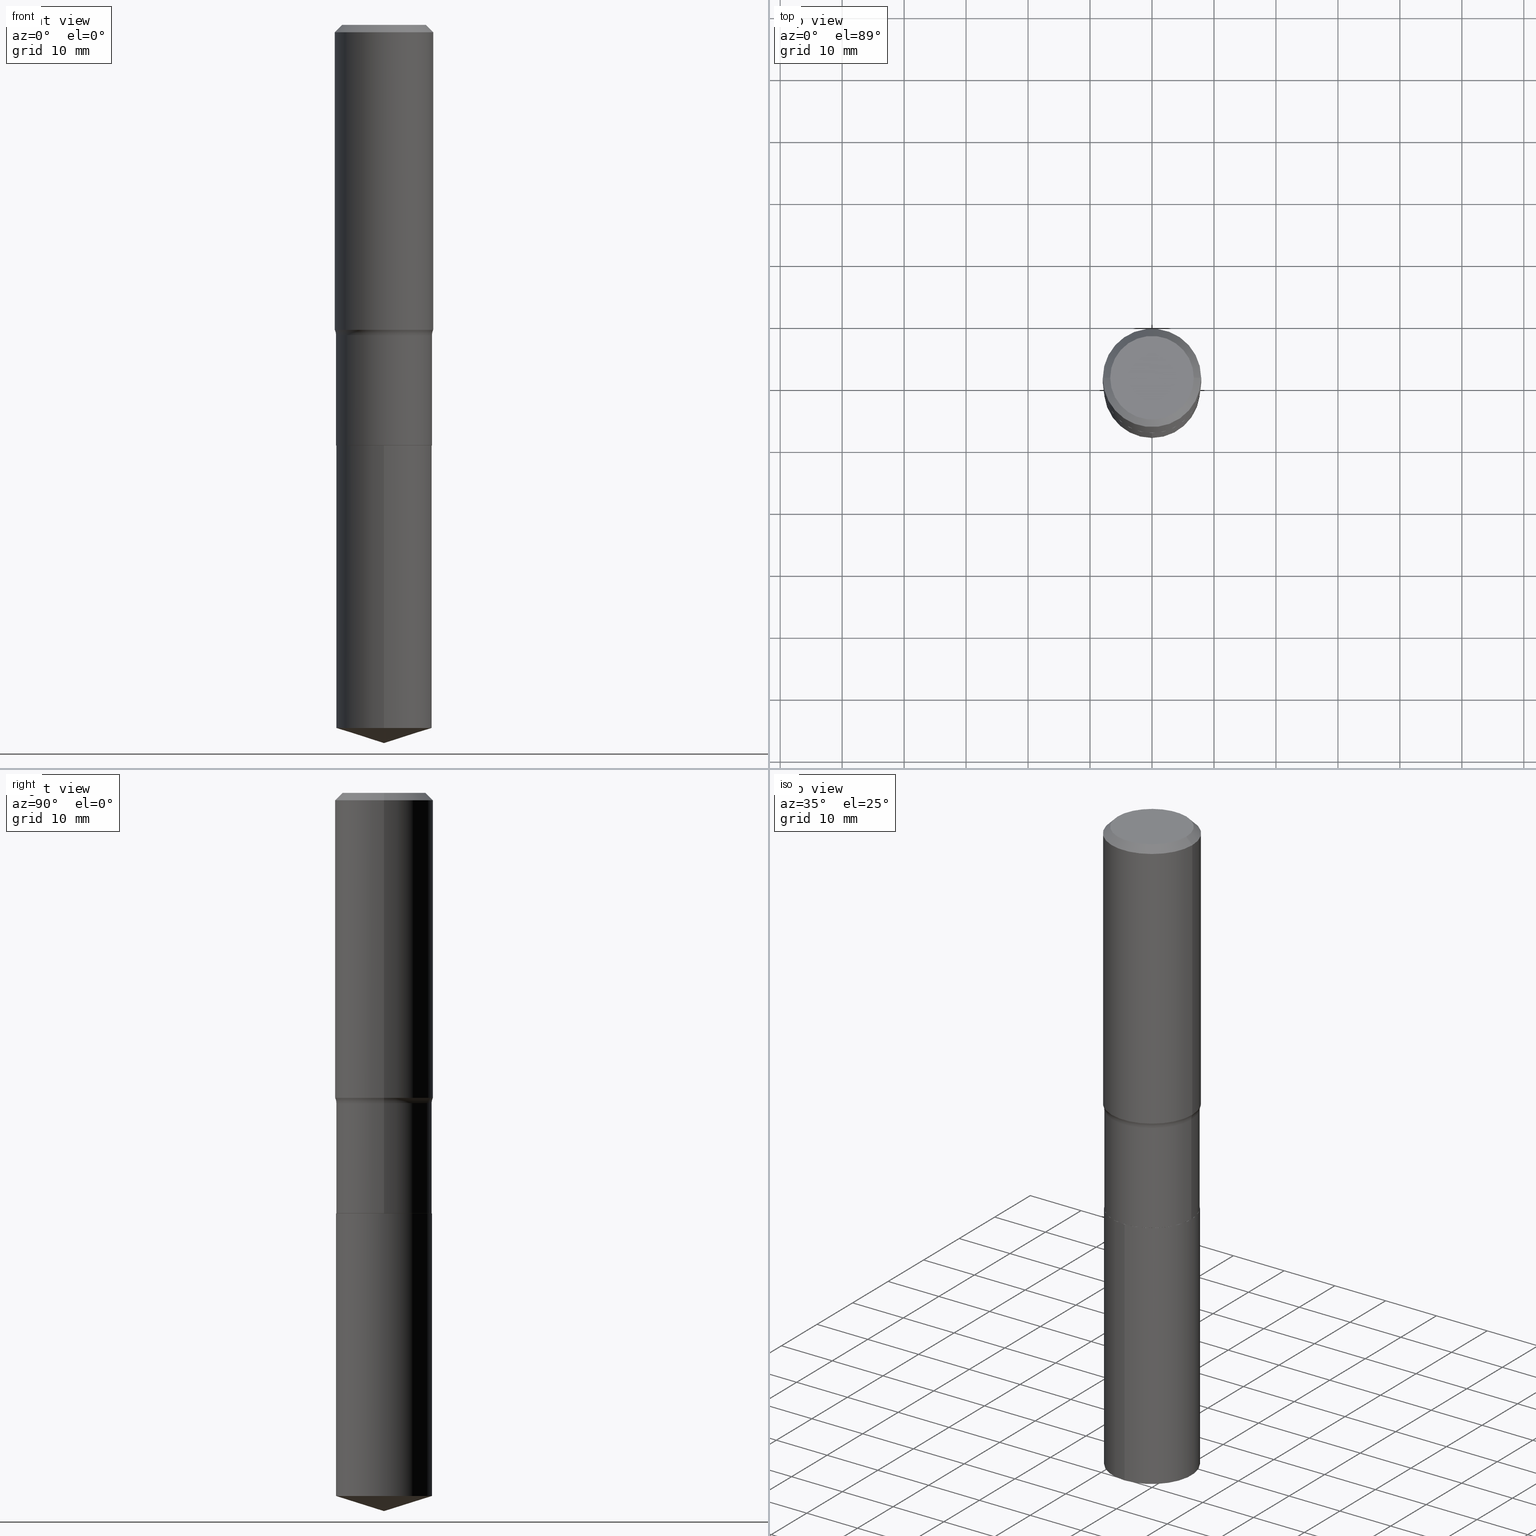
[diagram: canonical four-view strip — front | top / right | iso, engineering-drawing reading convention]
A machine part, canonical four-view strip (front | top / right | iso — engineering-drawing reading convention). The complete STEP part file that produces these views, byte-faithful:
ISO-10303-21;
HEADER;
FILE_DESCRIPTION (( 'STEP AP203' ),
    '1' );
FILE_NAME ('51785.STEP',
    '2024-04-19T13:26:02',
    ( '' ),
    ( '' ),
    'SwSTEP 2.0',
    'SolidWorks 2023',
    '' );
FILE_SCHEMA (( 'CONFIG_CONTROL_DESIGN' ));
ENDSEC;

DATA;
#1 = CARTESIAN_POINT ( 'NONE',  ( 0.3046999999999999709, -2.127708727891005464E-15, 1.485771063585021539E-29 ) ) ;
#2 = LINE ( 'NONE', #383, #112 ) ;
#3 = CARTESIAN_POINT ( 'NONE',  ( 1.146313502899288910E-30, -1.636631877582733305E-16, -0.04687500000000024980 ) ) ;
#4 = DIRECTION ( 'NONE',  ( 2.438088387897960049E-29, -3.491481338843145188E-15, -1.000000000000000000 ) ) ;
#5 =( GEOMETRIC_REPRESENTATION_CONTEXT ( 3 ) GLOBAL_UNCERTAINTY_ASSIGNED_CONTEXT ( ( #291 ) ) GLOBAL_UNIT_ASSIGNED_CONTEXT ( ( #435, #401, #329 ) ) REPRESENTATION_CONTEXT ( 'NONE', 'WORKASPACE' ) );
#6 = DIRECTION ( 'NONE',  ( 0.7071067811865454633, -7.319954787623248157E-15, -0.7071067811865495711 ) ) ;
#7 = DIRECTION ( 'NONE',  ( -2.445845639949451117E-29, 3.490941691444601507E-15, 1.000000000000000000 ) ) ;
#8 = CC_DESIGN_PERSON_AND_ORGANIZATION_ASSIGNMENT ( #474, #356, ( #333 ) ) ;
#9 = DIRECTION ( 'NONE',  ( -6.659769872151632089E-15, -0.9537169507482267106, 0.3007057995042736187 ) ) ;
#10 = CARTESIAN_POINT ( 'NONE',  ( -8.513497156094624843E-28, 1.215097859183723388E-13, 34.80757874015748143 ) ) ;
#11 = ORIENTED_EDGE ( 'NONE', *, *, #416, .T. ) ;
#12 = DATE_AND_TIME ( #470, #319 ) ;
#13 = CARTESIAN_POINT ( 'NONE',  ( 6.534048103246064579E-29, -9.328888989254999169E-15, -2.671899999999999498 ) ) ;
#14 = CIRCLE ( 'NONE', #65, 0.3047000000000000264 ) ;
#15 = EDGE_CURVE ( 'NONE', #136, #174, #484, .T. ) ;
#16 = CARTESIAN_POINT ( 'NONE',  ( 0.3042000000000000259, -1.145310623580716044E-14, -2.671899999999999498 ) ) ;
#17 = DATE_AND_TIME ( #406, #467 ) ;
#18 = APPROVAL_ROLE ( '' ) ;
#19 = ADVANCED_FACE ( 'NONE', ( #217 ), #368, .T. ) ;
#20 = EDGE_LOOP ( 'NONE', ( #62, #205 ) ) ;
#21 = PERSON_AND_ORGANIZATION_ROLE ( 'design_owner' ) ;
#22 = ORIENTED_EDGE ( 'NONE', *, *, #38, .F. ) ;
#23 = DIRECTION ( 'NONE',  ( 1.000000000000000000, -6.982962677686268288E-15, 4.875573276536765329E-29 ) ) ;
#24 = CONICAL_SURFACE ( 'NONE', #491, 0.3042000000000000259, 0.7853981633972775267 ) ;
#25 = DIRECTION ( 'NONE',  ( -2.445468806185136597E-29, 3.491481338843145583E-15, 1.000000000000000000 ) ) ;
#26 = ORIENTED_EDGE ( 'NONE', *, *, #254, .T. ) ;
#27 = EDGE_CURVE ( 'NONE', #488, #91, #196, .T. ) ;
#28 = ORIENTED_EDGE ( 'NONE', *, *, #226, .F. ) ;
#29 = ORIENTED_EDGE ( 'NONE', *, *, #275, .T. ) ;
#30 = CLOSED_SHELL ( 'NONE', ( #81, #72, #19, #441, #34, #127, #340, #190, #143, #109, #419, #49 ) ) ;
#31 = CIRCLE ( 'NONE', #386, 0.3047000000000000264 ) ;
#32 = ORIENTED_EDGE ( 'NONE', *, *, #173, .F. ) ;
#33 = DIRECTION ( 'NONE',  ( -2.445468806185136597E-29, 3.491481338843145583E-15, 1.000000000000000000 ) ) ;
#34 = ADVANCED_FACE ( 'NONE', ( #417 ), #238, .T. ) ;
#35 = ORIENTED_EDGE ( 'NONE', *, *, #412, .T. ) ;
#36 = CIRCLE ( 'NONE', #374, 0.07799999999999995826 ) ;
#37 = CONICAL_SURFACE ( 'NONE', #96, 0.3125000000000000000, 0.7853981633974453924 ) ;
#38 = EDGE_CURVE ( 'NONE', #220, #370, #389, .T. ) ;
#39 = EDGE_CURVE ( 'NONE', #220, #162, #208, .T. ) ;
#40 = LINE ( 'NONE', #1, #271 ) ;
#41 = CARTESIAN_POINT ( 'NONE',  ( 1.146313502899288910E-30, -1.636631877582733305E-16, -0.04687500000000024980 ) ) ;
#42 = DIRECTION ( 'NONE',  ( -2.445468806185136597E-29, 3.491481338843145583E-15, 1.000000000000000000 ) ) ;
#43 = CYLINDRICAL_SURFACE ( 'NONE', #167, 0.3125000000000000555 ) ;
#44 = ADVANCED_FACE ( 'NONE', ( #313 ), #274, .T. ) ;
#45 = DIRECTION ( 'NONE',  ( -1.000000000000000000, 6.982962677686266711E-15, 0.000000000000000000 ) ) ;
#46 = CIRCLE ( 'NONE', #280, 0.3125000000000001665 ) ;
#47 = DIRECTION ( 'NONE',  ( 1.000000000000000000, -6.982962677686268288E-15, 0.000000000000000000 ) ) ;
#48 = CARTESIAN_POINT ( 'NONE',  ( -0.3042000000000000259, -7.167417987072774219E-15, -2.671899999999999498 ) ) ;
#49 = ADVANCED_FACE ( 'NONE', ( #455 ), #24, .T. ) ;
#50 = ORIENTED_EDGE ( 'NONE', *, *, #77, .T. ) ;
#51 = DATE_AND_TIME ( #163, #366 ) ;
#52 = CARTESIAN_POINT ( 'NONE',  ( 1.115917073226936951E-28, -1.592742146721599322E-14, -4.562500000000000000 ) ) ;
#53 = DIRECTION ( 'NONE',  ( -6.982962677686265922E-15, -1.000000000000000000, 3.586278954596997549E-15 ) ) ;
#54 = ORIENTED_EDGE ( 'NONE', *, *, #39, .F. ) ;
#55 = DIRECTION ( 'NONE',  ( 1.000000000000000000, -6.982962677686266711E-15, 0.000000000000000000 ) ) ;
#56 = AXIS2_PLACEMENT_3D ( 'NONE', #489, #4, #128 ) ;
#57 = CIRCLE ( 'NONE', #454, 0.3125000000000000000 ) ;
#58 = ORIENTED_EDGE ( 'NONE', *, *, #337, .F. ) ;
#59 = ORIENTED_EDGE ( 'NONE', *, *, #456, .T. ) ;
#60 = COORDINATED_UNIVERSAL_TIME_OFFSET ( 5, 0, .BEHIND. ) ;
#61 = EDGE_CURVE ( 'NONE', #181, #136, #36, .T. ) ;
#62 = ORIENTED_EDGE ( 'NONE', *, *, #27, .T. ) ;
#63 = PERSON_AND_ORGANIZATION_ROLE ( 'design_supplier' ) ;
#64 = FACE_OUTER_BOUND ( 'NONE', #87, .T. ) ;
#65 = AXIS2_PLACEMENT_3D ( 'NONE', #431, #90, #241 ) ;
#66 = APPROVAL_PERSON_ORGANIZATION ( #403, #234, #135 ) ;
#67 = EDGE_LOOP ( 'NONE', ( #11, #338, #186, #111 ) ) ;
#68 = EDGE_LOOP ( 'NONE', ( #428, #32, #50, #26 ) ) ;
#69 = ORIENTED_EDGE ( 'NONE', *, *, #481, .T. ) ;
#70 = DIRECTION ( 'NONE',  ( -6.982962677686265922E-15, -1.000000000000000000, 3.500519750498701277E-15 ) ) ;
#71 = CONICAL_SURFACE ( 'NONE', #235, 124.8659371009151755, 1.265363707695891904 ) ;
#72 = ADVANCED_FACE ( 'NONE', ( #463 ), #95, .T. ) ;
#73 = AXIS2_PLACEMENT_3D ( 'NONE', #284, #113, #148 ) ;
#74 = ORIENTED_EDGE ( 'NONE', *, *, #173, .T. ) ;
#75 = PLANE ( 'NONE',  #189 ) ;
#76 = DIRECTION ( 'NONE',  ( -6.982962677686265922E-15, -1.000000000000000000, 3.586278954596997549E-15 ) ) ;
#77 = EDGE_CURVE ( 'NONE', #213, #475, #123, .T. ) ;
#78 = CARTESIAN_POINT ( 'NONE',  ( 1.092318771052631368E-28, -1.559348320336168709E-14, -4.466428459028574771 ) ) ;
#79 = CIRCLE ( 'NONE', #247, 0.3047000000000000264 ) ;
#80 = DIRECTION ( 'NONE',  ( 1.000000000000000000, -6.982962677686268288E-15, 0.000000000000000000 ) ) ;
#81 = ADVANCED_FACE ( 'NONE', ( #347 ), #223, .T. ) ;
#82 = DIRECTION ( 'NONE',  ( 1.000000000000000000, -6.982962677686265922E-15, 4.883557194083112901E-29 ) ) ;
#83 = DIRECTION ( 'NONE',  ( -2.445468806185136597E-29, 3.491481338843145583E-15, 1.000000000000000000 ) ) ;
#84 = DIRECTION ( 'NONE',  ( 1.000000000000000000, -6.982962677686265133E-15, 0.000000000000000000 ) ) ;
#85 = DIRECTION ( 'NONE',  ( -2.445845639949451117E-29, 3.490941691444601901E-15, 1.000000000000000000 ) ) ;
#86 = APPROVAL_PERSON_ORGANIZATION ( #175, #261, #18 ) ;
#87 = EDGE_LOOP ( 'NONE', ( #303, #211, #339 ) ) ;
#88 = APPLICATION_PROTOCOL_DEFINITION ( 'international standard', 'config_control_design', 1994, #110 ) ;
#89 = CARTESIAN_POINT ( 'NONE',  ( -0.3042000000000000259, -7.164768759898662229E-15, -2.671899999999999498 ) ) ;
#90 = DIRECTION ( 'NONE',  ( -2.445845639949451117E-29, 3.490941691444601507E-15, 1.000000000000000000 ) ) ;
#91 = VERTEX_POINT ( 'NONE', #166 ) ;
#92 = COORDINATED_UNIVERSAL_TIME_OFFSET ( 5, 0, .BEHIND. ) ;
#93 = DIRECTION ( 'NONE',  ( 1.000000000000000000, -6.982962677686267499E-15, 4.876176775795935793E-29 ) ) ;
#94 = DATE_AND_TIME ( #246, #272 ) ;
#95 = CONICAL_SURFACE ( 'NONE', #297, 0.3125000000000000000, 0.7853981633974453924 ) ;
#96 = AXIS2_PLACEMENT_3D ( 'NONE', #155, #204, #45 ) ;
#97 = VERTEX_POINT ( 'NONE', #207 ) ;
#98 = DIRECTION ( 'NONE',  ( -2.445468806185136877E-29, 3.491481338843145188E-15, 1.000000000000000000 ) ) ;
#99 = APPROVAL_DATE_TIME ( #94, #185 ) ;
#100 = EDGE_LOOP ( 'NONE', ( #322, #447, #132, #394 ) ) ;
#101 = COORDINATED_UNIVERSAL_TIME_OFFSET ( 5, 0, .BEHIND. ) ;
#102 = DIRECTION ( 'NONE',  ( 1.000000000000000000, -6.982962677686266711E-15, 4.876176775795936353E-29 ) ) ;
#103 = AXIS2_PLACEMENT_3D ( 'NONE', #434, #198, #93 ) ;
#104 = DIRECTION ( 'NONE',  ( 1.000000000000000000, -6.982962677686263555E-15, 0.000000000000000000 ) ) ;
#105 = VECTOR ( 'NONE', #85, 39.37007874015748143 ) ;
#106 = ORIENTED_EDGE ( 'NONE', *, *, #39, .T. ) ;
#107 = CARTESIAN_POINT ( 'NONE',  ( 6.534048103246064579E-29, -9.328888989254999169E-15, -2.671899999999999498 ) ) ;
#108 = ORIENTED_EDGE ( 'NONE', *, *, #373, .F. ) ;
#109 = ADVANCED_FACE ( 'NONE', ( #232 ), #321, .F. ) ;
#110 = APPLICATION_CONTEXT ( 'configuration controlled 3d designs of mechanical parts and assemblies' ) ;
#111 = ORIENTED_EDGE ( 'NONE', *, *, #342, .F. ) ;
#112 = VECTOR ( 'NONE', #158, 39.37007874015748143 ) ;
#113 = DIRECTION ( 'NONE',  ( -2.445468806185136597E-29, 3.491481338843145583E-15, 1.000000000000000000 ) ) ;
#114 = LINE ( 'NONE', #465, #446 ) ;
#115 = CARTESIAN_POINT ( 'NONE',  ( -0.2656250000000000000, 1.936681055139549843E-15, 1.951780836139768664E-17 ) ) ;
#116 = VECTOR ( 'NONE', #9, 39.37007874015748143 ) ;
#117 = LINE ( 'NONE', #230, #116 ) ;
#118 = PRODUCT_DEFINITION_SHAPE ( 'NONE', 'NONE',  #333 ) ;
#119 = DIRECTION ( 'NONE',  ( -2.445845639949451117E-29, 3.490941691444601507E-15, 1.000000000000000000 ) ) ;
#120 = DIRECTION ( 'NONE',  ( -2.445468806185136597E-29, 3.491481338843145583E-15, 1.000000000000000000 ) ) ;
#121 = LINE ( 'NONE', #426, #105 ) ;
#122 = DIRECTION ( 'NONE',  ( -2.445845639949451117E-29, 3.490941691444601901E-15, 1.000000000000000000 ) ) ;
#123 = LINE ( 'NONE', #277, #269 ) ;
#124 = CONICAL_SURFACE ( 'NONE', #378, 124.8659371009151755, 1.265363707695891904 ) ;
#125 = ORIENTED_EDGE ( 'NONE', *, *, #77, .F. ) ;
#126 = PERSON_AND_ORGANIZATION_ROLE ( 'creator' ) ;
#127 = ADVANCED_FACE ( 'NONE', ( #353 ), #385, .T. ) ;
#128 = DIRECTION ( 'NONE',  ( -1.000000000000000000, 6.982962677686265922E-15, -4.876176775795935793E-29 ) ) ;
#129 = CARTESIAN_POINT ( 'NONE',  ( 0.000000000000000000, 0.000000000000000000, 0.000000000000000000 ) ) ;
#130 = DIRECTION ( 'NONE',  ( -2.445468806185136597E-29, 3.491481338843145583E-15, 1.000000000000000000 ) ) ;
#131 = APPROVAL_STATUS ( 'not_yet_approved' ) ;
#132 = ORIENTED_EDGE ( 'NONE', *, *, #309, .T. ) ;
#133 = CIRCLE ( 'NONE', #492, 0.3046999999999999709 ) ;
#134 = ORIENTED_EDGE ( 'NONE', *, *, #164, .T. ) ;
#135 = APPROVAL_ROLE ( '' ) ;
#136 = VERTEX_POINT ( 'NONE', #305 ) ;
#137 = DATE_AND_TIME ( #479, #388 ) ;
#138 = ADVANCED_FACE ( 'NONE', ( #351 ), #71, .T. ) ;
#139 = EDGE_LOOP ( 'NONE', ( #362, #54 ) ) ;
#140 = DIRECTION ( 'NONE',  ( -2.438088387897960049E-29, 3.491481338843145188E-15, 1.000000000000000000 ) ) ;
#141 = VERTEX_POINT ( 'NONE', #227 ) ;
#142 = AXIS2_PLACEMENT_3D ( 'NONE', #327, #323, #23 ) ;
#143 = ADVANCED_FACE ( 'NONE', ( #315 ), #37, .T. ) ;
#144 = PERSON ( 'UNSPECIFIED', 'UNSPECIFIED', 'UNSPECIFIED', ('UNSPECIFIED'), ('UNSPECIFIED'), ('UNSPECIFIED') ) ;
#145 = EDGE_CURVE ( 'NONE', #97, #91, #121, .T. ) ;
#146 = VERTEX_POINT ( 'NONE', #281 ) ;
#147 = ORIENTED_EDGE ( 'NONE', *, *, #145, .F. ) ;
#148 = DIRECTION ( 'NONE',  ( 1.000000000000000000, -6.982962677686267499E-15, 4.876176775795935793E-29 ) ) ;
#149 = CC_DESIGN_APPROVAL ( #261, ( #333 ) ) ;
#150 = FACE_OUTER_BOUND ( 'NONE', #486, .T. ) ;
#151 = CYLINDRICAL_SURFACE ( 'NONE', #400, 0.3047000000000000264 ) ;
#152 = CC_DESIGN_PERSON_AND_ORGANIZATION_ASSIGNMENT ( #443, #252, ( #165 ) ) ;
#153 = PRODUCT ( '51785', '51785', '', ( #239 ) ) ;
#154 = CARTESIAN_POINT ( 'NONE',  ( 0.000000000000000000, 0.000000000000000000, 0.000000000000000000 ) ) ;
#155 = CARTESIAN_POINT ( 'NONE',  ( 1.146313502899288910E-30, -1.636631877582733305E-16, -0.04687500000000024980 ) ) ;
#156 = AXIS2_PLACEMENT_3D ( 'NONE', #195, #430, #462 ) ;
#157 = EDGE_CURVE ( 'NONE', #91, #488, #14, .T. ) ;
#158 = DIRECTION ( 'NONE',  ( 0.7071067811864267805, -2.468850131080992517E-15, 0.7071067811866682540 ) ) ;
#159 = DIRECTION ( 'NONE',  ( -1.000000000000000000, 6.982962677686266711E-15, 0.000000000000000000 ) ) ;
#160 = FACE_OUTER_BOUND ( 'NONE', #449, .T. ) ;
#161 = CARTESIAN_POINT ( 'NONE',  ( 6.534048103246064579E-29, -9.328888989254999169E-15, -2.671899999999999498 ) ) ;
#162 = VERTEX_POINT ( 'NONE', #16 ) ;
#163 = CALENDAR_DATE ( 2024, 19, 4 ) ;
#164 = EDGE_CURVE ( 'NONE', #330, #97, #326, .T. ) ;
#165 = SECURITY_CLASSIFICATION ( '', '', #294 ) ;
#166 = CARTESIAN_POINT ( 'NONE',  ( 2.165023715861134317E-15, 0.3046999999999907005, -2.671900000000000386 ) ) ;
#167 = AXIS2_PLACEMENT_3D ( 'NONE', #154, #381, #268 ) ;
#168 = PRODUCT_DEFINITION_FORMATION_WITH_SPECIFIED_SOURCE ( 'ANY', '', #153, .NOT_KNOWN. ) ;
#169 = ORIENTED_EDGE ( 'NONE', *, *, #456, .F. ) ;
#170 = PERSON_AND_ORGANIZATION ( #144, #306 ) ;
#171 = CARTESIAN_POINT ( 'NONE',  ( 1.115918839025420564E-28, -1.592742146721599322E-14, -4.562500000000000000 ) ) ;
#172 = LENGTH_MEASURE_WITH_UNIT ( LENGTH_MEASURE( 0.02539999999999999897 ), #206 );
#173 = EDGE_CURVE ( 'NONE', #213, #264, #182, .T. ) ;
#174 = VERTEX_POINT ( 'NONE', #317 ) ;
#175 = PERSON_AND_ORGANIZATION ( #144, #306 ) ;
#176 = AXIS2_PLACEMENT_3D ( 'NONE', #452, #415, #225 ) ;
#177 = CIRCLE ( 'NONE', #485, 0.07799999999999995826 ) ;
#178 = EDGE_LOOP ( 'NONE', ( #251, #397, #108, #282 ) ) ;
#179 = ORIENTED_EDGE ( 'NONE', *, *, #342, .T. ) ;
#180 = CC_DESIGN_PERSON_AND_ORGANIZATION_ASSIGNMENT ( #170, #126, ( #168 ) ) ;
#181 = VERTEX_POINT ( 'NONE', #422 ) ;
#182 = CIRCLE ( 'NONE', #334, 0.2656250000000000000 ) ;
#183 = ORIENTED_EDGE ( 'NONE', *, *, #254, .F. ) ;
#184 = CARTESIAN_POINT ( 'NONE',  ( 0.3826999999999999846, -9.554438683744257430E-15, -1.971099999999999630 ) ) ;
#185 = APPROVAL ( #131, 'UNSPECIFIED' ) ;
#186 = ORIENTED_EDGE ( 'NONE', *, *, #367, .F. ) ;
#187 = DIRECTION ( 'NONE',  ( -6.982962677686266711E-15, -1.000000000000000000, 3.491481338843145583E-15 ) ) ;
#188 = CLOSED_SHELL ( 'NONE', ( #201, #138, #384, #44, #404 ) ) ;
#189 = AXIS2_PLACEMENT_3D ( 'NONE', #450, #448, #331 ) ;
#190 = ADVANCED_FACE ( 'NONE', ( #160 ), #43, .T. ) ;
#191 = LINE ( 'NONE', #349, #348 ) ;
#192 = DIRECTION ( 'NONE',  ( -2.445845639949451117E-29, 3.490941691444601507E-15, 1.000000000000000000 ) ) ;
#193 = EDGE_CURVE ( 'NONE', #442, #488, #114, .T. ) ;
#194 = DIRECTION ( 'NONE',  ( 1.000000000000000000, -6.982962677686266711E-15, 0.000000000000000000 ) ) ;
#195 = CARTESIAN_POINT ( 'NONE',  ( 1.092318771052631368E-28, -1.559348320336168709E-14, -4.466428459028574771 ) ) ;
#196 = CIRCLE ( 'NONE', #255, 0.3047000000000000264 ) ;
#197 = AXIS2_PLACEMENT_3D ( 'NONE', #270, #314, #47 ) ;
#198 = DIRECTION ( 'NONE',  ( -2.445468806185136597E-29, 3.491481338843145583E-15, 1.000000000000000000 ) ) ;
#199 = DIRECTION ( 'NONE',  ( -2.445468806185136597E-29, 3.491481338843145583E-15, 1.000000000000000000 ) ) ;
#200 = CARTESIAN_POINT ( 'NONE',  ( -0.3826999999999999846, -4.162811817239819829E-15, -1.971099999999999630 ) ) ;
#201 = ADVANCED_FACE ( 'NONE', ( #150 ), #151, .T. ) ;
#202 = ORIENTED_EDGE ( 'NONE', *, *, #226, .T. ) ;
#203 = CARTESIAN_POINT ( 'NONE',  ( -0.3125000000000000000, -1.243060822280509884E-15, -0.04687500000000024980 ) ) ;
#204 = DIRECTION ( 'NONE',  ( 2.445468806185136597E-29, -3.491481338843145583E-15, -1.000000000000000000 ) ) ;
#205 = ORIENTED_EDGE ( 'NONE', *, *, #157, .T. ) ;
#206 =( LENGTH_UNIT ( ) NAMED_UNIT ( * ) SI_UNIT ( $, .METRE. ) );
#207 = CARTESIAN_POINT ( 'NONE',  ( 2.165023715861135500E-15, 0.3046999999999844833, -4.466428459028575659 ) ) ;
#208 = CIRCLE ( 'NONE', #215, 0.3042000000000000259 ) ;
#209 = VECTOR ( 'NONE', #98, 39.37007874015748143 ) ;
#210 = APPLICATION_PROTOCOL_DEFINITION ( 'international standard', 'config_control_design', 1994, #451 ) ;
#211 = ORIENTED_EDGE ( 'NONE', *, *, #316, .T. ) ;
#212 = CARTESIAN_POINT ( 'NONE',  ( -0.3047000000000000819, -5.939577341928623564E-15, -2.671399999999999331 ) ) ;
#213 = VERTEX_POINT ( 'NONE', #115 ) ;
#214 = APPROVAL_DATE_TIME ( #12, #234 ) ;
#215 = AXIS2_PLACEMENT_3D ( 'NONE', #161, #318, #424 ) ;
#216 = CIRCLE ( 'NONE', #197, 0.3125000000000001665 ) ;
#217 = FACE_OUTER_BOUND ( 'NONE', #354, .T. ) ;
#218 = ORIENTED_EDGE ( 'NONE', *, *, #27, .F. ) ;
#219 = EDGE_CURVE ( 'NONE', #97, #442, #341, .T. ) ;
#220 = VERTEX_POINT ( 'NONE', #89 ) ;
#221 = FACE_OUTER_BOUND ( 'NONE', #139, .T. ) ;
#222 = ORIENTED_EDGE ( 'NONE', *, *, #61, .F. ) ;
#223 = CONICAL_SURFACE ( 'NONE', #439, 0.3042000000000000259, 0.7853981633972775267 ) ;
#224 = DIRECTION ( 'NONE',  ( 1.000000000000000000, -6.982962677686265922E-15, 4.876176775795935793E-29 ) ) ;
#225 = DIRECTION ( 'NONE',  ( 1.000000000000000000, -6.982962677686263555E-15, 0.000000000000000000 ) ) ;
#226 = EDGE_CURVE ( 'NONE', #181, #141, #216, .T. ) ;
#227 = CARTESIAN_POINT ( 'NONE',  ( 0.3125000000000001665, -8.945526392080334964E-15, -1.937100588240382004 ) ) ;
#228 = LINE ( 'NONE', #346, #256 ) ;
#229 = TOROIDAL_SURFACE ( 'NONE', #478, 0.3826999999999999846, 0.07799999999999999989 ) ;
#230 = CARTESIAN_POINT ( 'NONE',  ( 1.115715700799962812E-28, -1.593030523498433399E-14, -4.562500000000000000 ) ) ;
#231 = CARTESIAN_POINT ( 'NONE',  ( 0.3125000000000000000, -2.307568812061876870E-15, -0.04687500000000024980 ) ) ;
#232 = FACE_OUTER_BOUND ( 'NONE', #299, .T. ) ;
#233 = CARTESIAN_POINT ( 'NONE',  ( 6.532825368842971777E-29, -9.327143248585576876E-15, -2.671399999999999331 ) ) ;
#234 = APPROVAL ( #287, 'UNSPECIFIED' ) ;
#235 = AXIS2_PLACEMENT_3D ( 'NONE', #10, #7, #382 ) ;
#236 = CIRCLE ( 'NONE', #298, 0.3047000000000000264 ) ;
#237 = EDGE_CURVE ( 'NONE', #264, #146, #240, .T. ) ;
#238 = CYLINDRICAL_SURFACE ( 'NONE', #103, 0.3046999999999999709 ) ;
#239 = MECHANICAL_CONTEXT ( 'NONE', #110, 'mechanical' ) ;
#240 = LINE ( 'NONE', #231, #408 ) ;
#241 = DIRECTION ( 'NONE',  ( -6.982962677686265922E-15, -1.000000000000000000, 3.586278954596997549E-15 ) ) ;
#242 = DIRECTION ( 'NONE',  ( -0.7071067811864267805, 7.493145998869918709E-15, 0.7071067811866682540 ) ) ;
#243 = CC_DESIGN_PERSON_AND_ORGANIZATION_ASSIGNMENT ( #429, #63, ( #168 ) ) ;
#244 = ORIENTED_EDGE ( 'NONE', *, *, #193, .F. ) ;
#245 = CARTESIAN_POINT ( 'NONE',  ( -2.127708727890939988E-15, -0.3047000000000093523, -2.671899999999998165 ) ) ;
#246 = CALENDAR_DATE ( 2024, 19, 4 ) ;
#247 = AXIS2_PLACEMENT_3D ( 'NONE', #276, #425, #84 ) ;
#248 = ORIENTED_EDGE ( 'NONE', *, *, #490, .F. ) ;
#249 = DIRECTION ( 'NONE',  ( -2.445468806185136597E-29, 3.491481338843145583E-15, 1.000000000000000000 ) ) ;
#250 = DATE_TIME_ROLE ( 'creation_date' ) ;
#251 = ORIENTED_EDGE ( 'NONE', *, *, #367, .T. ) ;
#252 = PERSON_AND_ORGANIZATION_ROLE ( 'classification_officer' ) ;
#253 = CC_DESIGN_SECURITY_CLASSIFICATION ( #165, ( #168 ) ) ;
#254 = EDGE_CURVE ( 'NONE', #475, #146, #57, .T. ) ;
#255 = AXIS2_PLACEMENT_3D ( 'NONE', #257, #409, #53 ) ;
#256 = VECTOR ( 'NONE', #380, 39.37007874015748143 ) ;
#257 = CARTESIAN_POINT ( 'NONE',  ( 6.534048103246064579E-29, -9.328888989254999169E-15, -2.671899999999999498 ) ) ;
#258 = APPROVAL_PERSON_ORGANIZATION ( #407, #185, #328 ) ;
#259 = EDGE_LOOP ( 'NONE', ( #222, #169, #35, #262 ) ) ;
#260 = DIRECTION ( 'NONE',  ( 1.000000000000000000, -6.982962677686266711E-15, 0.000000000000000000 ) ) ;
#261 = APPROVAL ( #283, 'UNSPECIFIED' ) ;
#262 = ORIENTED_EDGE ( 'NONE', *, *, #373, .T. ) ;
#263 = DIMENSIONAL_EXPONENTS ( 1.000000000000000000, 0.000000000000000000, 0.000000000000000000, 0.000000000000000000, 0.000000000000000000, 0.000000000000000000, 0.000000000000000000 ) ;
#264 = VERTEX_POINT ( 'NONE', #418 ) ;
#265 = CIRCLE ( 'NONE', #469, 0.3042000000000000259 ) ;
#266 = DIRECTION ( 'NONE',  ( 1.000000000000000000, -6.982962677686265922E-15, 4.883557194083112901E-29 ) ) ;
#267 = CARTESIAN_POINT ( 'NONE',  ( 1.146313502899288910E-30, -1.636631877582733305E-16, -0.04687500000000024980 ) ) ;
#268 = DIRECTION ( 'NONE',  ( 1.000000000000000000, -6.982962677686266711E-15, 4.876176775795936353E-29 ) ) ;
#269 = VECTOR ( 'NONE', #396, 39.37007874015748143 ) ;
#270 = CARTESIAN_POINT ( 'NONE',  ( 4.737119062984733269E-29, -6.763350555303374250E-15, -1.937100588240382004 ) ) ;
#271 = VECTOR ( 'NONE', #459, 39.37007874015748143 ) ;
#272 = LOCAL_TIME ( 9, 26, 2.000000000000000000, #436 ) ;
#273 = CARTESIAN_POINT ( 'NONE',  ( 4.820263563871521824E-29, -6.882058866993723526E-15, -1.971099999999999630 ) ) ;
#274 = CYLINDRICAL_SURFACE ( 'NONE', #399, 0.3047000000000000264 ) ;
#275 = EDGE_CURVE ( 'NONE', #442, #97, #236, .T. ) ;
#276 = CARTESIAN_POINT ( 'NONE',  ( 6.532825368842971777E-29, -9.327143248585576876E-15, -2.671399999999999331 ) ) ;
#277 = CARTESIAN_POINT ( 'NONE',  ( -0.3125000000000000000, 2.018512649018685091E-15, -0.04687500000000024980 ) ) ;
#278 = ORIENTED_EDGE ( 'NONE', *, *, #237, .T. ) ;
#279 = DIRECTION ( 'NONE',  ( 1.000000000000000000, -6.982962677686268288E-15, 4.875573276536765329E-29 ) ) ;
#280 = AXIS2_PLACEMENT_3D ( 'NONE', #438, #249, #395 ) ;
#281 = CARTESIAN_POINT ( 'NONE',  ( 0.3125000000000000000, -2.345839024535231998E-15, -0.04687500000000024980 ) ) ;
#282 = ORIENTED_EDGE ( 'NONE', *, *, #309, .F. ) ;
#283 = APPROVAL_STATUS ( 'not_yet_approved' ) ;
#284 = CARTESIAN_POINT ( 'NONE',  ( 0.000000000000000000, 0.000000000000000000, 0.000000000000000000 ) ) ;
#285 = EDGE_CURVE ( 'NONE', #370, #136, #228, .T. ) ;
#286 = VERTEX_POINT ( 'NONE', #392 ) ;
#287 = APPROVAL_STATUS ( 'not_yet_approved' ) ;
#288 = AXIS2_PLACEMENT_3D ( 'NONE', #129, #391, #360 ) ;
#289 = ORIENTED_EDGE ( 'NONE', *, *, #193, .T. ) ;
#290 = LINE ( 'NONE', #433, #209 ) ;
#291 = UNCERTAINTY_MEASURE_WITH_UNIT (LENGTH_MEASURE( 1.000000000000000082E-05 ), #435, 'distance_accuracy_value', 'NONE');
#292 = CARTESIAN_POINT ( 'NONE',  ( 4.820263563871521824E-29, -6.882058866993723526E-15, -1.971099999999999630 ) ) ;
#293 = ORIENTED_EDGE ( 'NONE', *, *, #490, .T. ) ;
#294 = SECURITY_CLASSIFICATION_LEVEL ( 'unclassified' ) ;
#295 = CARTESIAN_POINT ( 'NONE',  ( 0.000000000000000000, 0.000000000000000000, 0.000000000000000000 ) ) ;
#296 = CARTESIAN_POINT ( 'NONE',  ( -2.127708727890896995E-15, -0.3047000000000157915, -4.466428459028572995 ) ) ;
#297 = AXIS2_PLACEMENT_3D ( 'NONE', #267, #466, #159 ) ;
#298 = AXIS2_PLACEMENT_3D ( 'NONE', #78, #352, #311 ) ;
#299 = EDGE_LOOP ( 'NONE', ( #74, #69 ) ) ;
#300 = DIRECTION ( 'NONE',  ( 1.000000000000000000, -6.982962677686261977E-15, 0.000000000000000000 ) ) ;
#301 = ORIENTED_EDGE ( 'NONE', *, *, #61, .T. ) ;
#302 = FACE_OUTER_BOUND ( 'NONE', #405, .T. ) ;
#303 = ORIENTED_EDGE ( 'NONE', *, *, #164, .F. ) ;
#304 = MANIFOLD_SOLID_BREP ( 'Body-Move/Copy2[1]', #188 ) ;
#305 = CARTESIAN_POINT ( 'NONE',  ( -0.3046999999999999709, -5.939577341928625142E-15, -1.971099999999999630 ) ) ;
#306 = ORGANIZATION ( 'UNSPECIFIED', 'UNSPECIFIED', '' ) ;
#307 = CC_DESIGN_DATE_AND_TIME_ASSIGNMENT ( #17, #361, ( #165 ) ) ;
#308 = FACE_OUTER_BOUND ( 'NONE', #259, .T. ) ;
#309 = EDGE_CURVE ( 'NONE', #286, #174, #40, .T. ) ;
#310 = CARTESIAN_POINT ( 'NONE',  ( 6.534048103246064579E-29, -9.328888989254999169E-15, -2.671899999999999498 ) ) ;
#311 = DIRECTION ( 'NONE',  ( -6.982962677686265922E-15, -1.000000000000000000, 3.586278954596997549E-15 ) ) ;
#312 = CIRCLE ( 'NONE', #142, 0.2656250000000000000 ) ;
#313 = FACE_OUTER_BOUND ( 'NONE', #371, .T. ) ;
#314 = DIRECTION ( 'NONE',  ( -2.445468806185136597E-29, 3.491481338843145583E-15, 1.000000000000000000 ) ) ;
#315 = FACE_OUTER_BOUND ( 'NONE', #68, .T. ) ;
#316 = EDGE_CURVE ( 'NONE', #330, #442, #117, .T. ) ;
#317 = CARTESIAN_POINT ( 'NONE',  ( 0.3046999999999999709, -9.009767594884727806E-15, -1.971099999999999630 ) ) ;
#318 = DIRECTION ( 'NONE',  ( -2.445468806185136597E-29, 3.491481338843145583E-15, 1.000000000000000000 ) ) ;
#319 = LOCAL_TIME ( 9, 26, 2.000000000000000000, #60 ) ;
#320 = CIRCLE ( 'NONE', #458, 0.3125000000000000000 ) ;
#321 = PLANE ( 'NONE',  #56 ) ;
#322 = ORIENTED_EDGE ( 'NONE', *, *, #285, .F. ) ;
#323 = DIRECTION ( 'NONE',  ( -2.445468806185136597E-29, 3.491481338843145583E-15, 1.000000000000000000 ) ) ;
#324 = CC_DESIGN_PERSON_AND_ORGANIZATION_ASSIGNMENT ( #363, #21, ( #153 ) ) ;
#325 = EDGE_CURVE ( 'NONE', #181, #475, #191, .T. ) ;
#326 = LINE ( 'NONE', #171, #350 ) ;
#327 = CARTESIAN_POINT ( 'NONE',  ( -4.773019151292989710E-46, 6.814606366898303014E-32, 1.951780836141094628E-17 ) ) ;
#328 = APPROVAL_ROLE ( '' ) ;
#329 =( NAMED_UNIT ( * ) SI_UNIT ( $, .STERADIAN. ) SOLID_ANGLE_UNIT ( ) );
#330 = VERTEX_POINT ( 'NONE', #52 ) ;
#331 = DIRECTION ( 'NONE',  ( 6.982962677686265922E-15, 1.000000000000000000, -3.490941691444601901E-15 ) ) ;
#332 = ORIENTED_EDGE ( 'NONE', *, *, #275, .F. ) ;
#333 = PRODUCT_DEFINITION ( 'UNKNOWN', '', #168, #343 ) ;
#334 = AXIS2_PLACEMENT_3D ( 'NONE', #359, #130, #279 ) ;
#335 = ORIENTED_EDGE ( 'NONE', *, *, #337, .T. ) ;
#336 = CARTESIAN_POINT ( 'NONE',  ( 6.534048103246064579E-29, -9.328888989254999169E-15, -2.671899999999999498 ) ) ;
#337 = EDGE_CURVE ( 'NONE', #146, #475, #320, .T. ) ;
#338 = ORIENTED_EDGE ( 'NONE', *, *, #38, .T. ) ;
#339 = ORIENTED_EDGE ( 'NONE', *, *, #219, .F. ) ;
#340 = ADVANCED_FACE ( 'NONE', ( #308 ), #229, .F. ) ;
#341 = CIRCLE ( 'NONE', #156, 0.3047000000000000264 ) ;
#342 = EDGE_CURVE ( 'NONE', #162, #286, #2, .T. ) ;
#343 = DESIGN_CONTEXT ( 'detailed design', #451, 'design' ) ;
#344 = DIRECTION ( 'NONE',  ( 1.000000000000000000, -6.982962677686268288E-15, 0.000000000000000000 ) ) ;
#345 = DIRECTION ( 'NONE',  ( -2.445468806185136877E-29, 3.491481338843145188E-15, 1.000000000000000000 ) ) ;
#346 = CARTESIAN_POINT ( 'NONE',  ( -0.3046999999999999709, 2.165023715861025059E-15, -1.498799522000669851E-29 ) ) ;
#347 = FACE_OUTER_BOUND ( 'NONE', #67, .T. ) ;
#348 = VECTOR ( 'NONE', #345, 39.37007874015748143 ) ;
#349 = CARTESIAN_POINT ( 'NONE',  ( -0.3125000000000000555, 2.220446049250313475E-15, -1.537167215704658512E-29 ) ) ;
#350 = VECTOR ( 'NONE', #473, 39.37007874015748854 ) ;
#351 = FACE_OUTER_BOUND ( 'NONE', #390, .T. ) ;
#352 = DIRECTION ( 'NONE',  ( -2.445845639949451117E-29, 3.490941691444601507E-15, 1.000000000000000000 ) ) ;
#353 = FACE_OUTER_BOUND ( 'NONE', #100, .T. ) ;
#354 = EDGE_LOOP ( 'NONE', ( #59, #375, #58, #248 ) ) ;
#355 = DIRECTION ( 'NONE',  ( -1.000000000000000000, 7.105427357601001859E-15, 0.000000000000000000 ) ) ;
#356 = PERSON_AND_ORGANIZATION_ROLE ( 'creator' ) ;
#357 = CC_DESIGN_APPROVAL ( #234, ( #168 ) ) ;
#358 = AXIS2_PLACEMENT_3D ( 'NONE', #376, #33, #266 ) ;
#359 = CARTESIAN_POINT ( 'NONE',  ( -4.773019151292989710E-46, 6.814606366898303014E-32, 1.951780836141094628E-17 ) ) ;
#360 = DIRECTION ( 'NONE',  ( 1.000000000000000000, 0.000000000000000000, 0.000000000000000000 ) ) ;
#361 = DATE_TIME_ROLE ( 'classification_date' ) ;
#362 = ORIENTED_EDGE ( 'NONE', *, *, #416, .F. ) ;
#363 = PERSON_AND_ORGANIZATION ( #144, #306 ) ;
#364 = EDGE_CURVE ( 'NONE', #370, #286, #79, .T. ) ;
#365 = ORIENTED_EDGE ( 'NONE', *, *, #145, .T. ) ;
#366 = LOCAL_TIME ( 9, 26, 2.000000000000000000, #92 ) ;
#367 = EDGE_CURVE ( 'NONE', #286, #370, #31, .T. ) ;
#368 = CYLINDRICAL_SURFACE ( 'NONE', #420, 0.3125000000000000555 ) ;
#369 = FACE_OUTER_BOUND ( 'NONE', #20, .T. ) ;
#370 = VERTEX_POINT ( 'NONE', #212 ) ;
#371 = EDGE_LOOP ( 'NONE', ( #147, #432, #289, #413 ) ) ;
#372 = PLANE ( 'NONE',  #414 ) ;
#373 = EDGE_CURVE ( 'NONE', #174, #136, #133, .T. ) ;
#374 = AXIS2_PLACEMENT_3D ( 'NONE', #200, #471, #355 ) ;
#375 = ORIENTED_EDGE ( 'NONE', *, *, #325, .T. ) ;
#376 = CARTESIAN_POINT ( 'NONE',  ( 4.820263563871521824E-29, -6.882058866993723526E-15, -1.971099999999999630 ) ) ;
#377 = ORIENTED_EDGE ( 'NONE', *, *, #481, .F. ) ;
#378 = AXIS2_PLACEMENT_3D ( 'NONE', #410, #483, #70 ) ;
#379 = CC_DESIGN_APPROVAL ( #185, ( #165 ) ) ;
#380 = DIRECTION ( 'NONE',  ( -2.445468806185136877E-29, 3.491481338843145188E-15, 1.000000000000000000 ) ) ;
#381 = DIRECTION ( 'NONE',  ( -2.445468806185136597E-29, 3.491481338843145583E-15, 1.000000000000000000 ) ) ;
#382 = DIRECTION ( 'NONE',  ( -6.982962677686265922E-15, -1.000000000000000000, 3.500519750498701277E-15 ) ) ;
#383 = CARTESIAN_POINT ( 'NONE',  ( 0.3042000000000000259, -1.145310623580716044E-14, -2.671899999999999498 ) ) ;
#384 = ADVANCED_FACE ( 'NONE', ( #64 ), #124, .T. ) ;
#385 = CYLINDRICAL_SURFACE ( 'NONE', #73, 0.3046999999999999709 ) ;
#386 = AXIS2_PLACEMENT_3D ( 'NONE', #233, #387, #398 ) ;
#387 = DIRECTION ( 'NONE',  ( -2.445468806185136597E-29, 3.491481338843145583E-15, 1.000000000000000000 ) ) ;
#388 = LOCAL_TIME ( 9, 26, 2.000000000000000000, #476 ) ;
#389 = LINE ( 'NONE', #48, #427 ) ;
#390 = EDGE_LOOP ( 'NONE', ( #437, #134, #332 ) ) ;
#391 = DIRECTION ( 'NONE',  ( 0.000000000000000000, 0.000000000000000000, 1.000000000000000000 ) ) ;
#392 = CARTESIAN_POINT ( 'NONE',  ( 0.3047000000000000264, -1.145485197647658116E-14, -2.671399999999999331 ) ) ;
#393 = CARTESIAN_POINT ( 'NONE',  ( 6.534048103246064579E-29, -9.328888989254999169E-15, -2.671899999999999498 ) ) ;
#394 = ORIENTED_EDGE ( 'NONE', *, *, #15, .F. ) ;
#395 = DIRECTION ( 'NONE',  ( 1.000000000000000000, -6.982962677686268288E-15, 0.000000000000000000 ) ) ;
#396 = DIRECTION ( 'NONE',  ( -0.7071067811865454633, 2.468850131082235367E-15, -0.7071067811865495711 ) ) ;
#397 = ORIENTED_EDGE ( 'NONE', *, *, #285, .T. ) ;
#398 = DIRECTION ( 'NONE',  ( 1.000000000000000000, -6.982962677686265133E-15, 0.000000000000000000 ) ) ;
#399 = AXIS2_PLACEMENT_3D ( 'NONE', #460, #119, #76 ) ;
#400 = AXIS2_PLACEMENT_3D ( 'NONE', #310, #192, #457 ) ;
#401 =( NAMED_UNIT ( * ) PLANE_ANGLE_UNIT ( ) SI_UNIT ( $, .RADIAN. ) );
#402 = ORIENTED_EDGE ( 'NONE', *, *, #412, .F. ) ;
#403 = PERSON_AND_ORGANIZATION ( #144, #306 ) ;
#404 = ADVANCED_FACE ( 'NONE', ( #369 ), #75, .F. ) ;
#405 = EDGE_LOOP ( 'NONE', ( #28, #301, #468, #402 ) ) ;
#406 = CALENDAR_DATE ( 2024, 19, 4 ) ;
#407 = PERSON_AND_ORGANIZATION ( #144, #306 ) ;
#408 = VECTOR ( 'NONE', #6, 39.37007874015748143 ) ;
#409 = DIRECTION ( 'NONE',  ( -2.445845639949451117E-29, 3.490941691444601507E-15, 1.000000000000000000 ) ) ;
#410 = CARTESIAN_POINT ( 'NONE',  ( -8.513497156094624843E-28, 1.215097859183723388E-13, 34.80757874015748143 ) ) ;
#411 = ORIENTED_EDGE ( 'NONE', *, *, #364, .F. ) ;
#412 = EDGE_CURVE ( 'NONE', #141, #174, #177, .T. ) ;
#413 = ORIENTED_EDGE ( 'NONE', *, *, #157, .F. ) ;
#414 = AXIS2_PLACEMENT_3D ( 'NONE', #336, #140, #224 ) ;
#415 = DIRECTION ( 'NONE',  ( -2.445468806185136597E-29, 3.491481338843145583E-15, 1.000000000000000000 ) ) ;
#416 = EDGE_CURVE ( 'NONE', #162, #220, #265, .T. ) ;
#417 = FACE_OUTER_BOUND ( 'NONE', #178, .T. ) ;
#418 = CARTESIAN_POINT ( 'NONE',  ( 0.2656250000000000000, -2.064944296359970168E-15, 1.951780836142464966E-17 ) ) ;
#419 = ADVANCED_FACE ( 'NONE', ( #221 ), #372, .F. ) ;
#420 = AXIS2_PLACEMENT_3D ( 'NONE', #295, #445, #102 ) ;
#421 = TOROIDAL_SURFACE ( 'NONE', #358, 0.3826999999999999846, 0.07799999999999999989 ) ;
#422 = CARTESIAN_POINT ( 'NONE',  ( -0.3125000000000001665, -4.542904506053060381E-15, -1.937100588240382004 ) ) ;
#423 = DIRECTION ( 'NONE',  ( -2.445468806185136597E-29, 3.491481338843145583E-15, 1.000000000000000000 ) ) ;
#424 = DIRECTION ( 'NONE',  ( 1.000000000000000000, -6.982962677686266711E-15, 0.000000000000000000 ) ) ;
#425 = DIRECTION ( 'NONE',  ( -2.445468806185136597E-29, 3.491481338843145583E-15, 1.000000000000000000 ) ) ;
#426 = CARTESIAN_POINT ( 'NONE',  ( 2.165023715861090535E-15, 0.3046999999999907005, -2.671900000000000386 ) ) ;
#427 = VECTOR ( 'NONE', #242, 39.37007874015748143 ) ;
#428 = ORIENTED_EDGE ( 'NONE', *, *, #237, .F. ) ;
#429 = PERSON_AND_ORGANIZATION ( #144, #306 ) ;
#430 = DIRECTION ( 'NONE',  ( -2.445845639949451117E-29, 3.490941691444601507E-15, 1.000000000000000000 ) ) ;
#431 = CARTESIAN_POINT ( 'NONE',  ( 6.534048103246064579E-29, -9.328888989254999169E-15, -2.671899999999999498 ) ) ;
#432 = ORIENTED_EDGE ( 'NONE', *, *, #219, .T. ) ;
#433 = CARTESIAN_POINT ( 'NONE',  ( 0.3125000000000000555, -2.182175836776958741E-15, 1.523805242436230356E-29 ) ) ;
#434 = CARTESIAN_POINT ( 'NONE',  ( 0.000000000000000000, 0.000000000000000000, 0.000000000000000000 ) ) ;
#435 =( CONVERSION_BASED_UNIT ( 'INCH', #172 ) LENGTH_UNIT ( ) NAMED_UNIT ( #263 ) );
#436 = COORDINATED_UNIVERSAL_TIME_OFFSET ( 5, 0, .BEHIND. ) ;
#437 = ORIENTED_EDGE ( 'NONE', *, *, #316, .F. ) ;
#438 = CARTESIAN_POINT ( 'NONE',  ( 4.737119062984733269E-29, -6.763350555303374250E-15, -1.937100588240382004 ) ) ;
#439 = AXIS2_PLACEMENT_3D ( 'NONE', #13, #83, #55 ) ;
#440 = APPROVAL_DATE_TIME ( #51, #261 ) ;
#441 = ADVANCED_FACE ( 'NONE', ( #302 ), #421, .F. ) ;
#442 = VERTEX_POINT ( 'NONE', #296 ) ;
#443 = PERSON_AND_ORGANIZATION ( #144, #306 ) ;
#444 = SHAPE_DEFINITION_REPRESENTATION ( #118, #477 ) ;
#445 = DIRECTION ( 'NONE',  ( -2.445468806185136597E-29, 3.491481338843145583E-15, 1.000000000000000000 ) ) ;
#446 = VECTOR ( 'NONE', #122, 39.37007874015748143 ) ;
#447 = ORIENTED_EDGE ( 'NONE', *, *, #364, .T. ) ;
#448 = DIRECTION ( 'NONE',  ( 2.445845639949450276E-29, -3.490941691444601901E-15, -1.000000000000000000 ) ) ;
#449 = EDGE_LOOP ( 'NONE', ( #472, #202, #293, #183 ) ) ;
#450 = CARTESIAN_POINT ( 'NONE',  ( 6.534048103246064579E-29, -9.328888989254999169E-15, -2.671899999999999498 ) ) ;
#451 = APPLICATION_CONTEXT ( 'configuration controlled 3d designs of mechanical parts and assemblies' ) ;
#452 = CARTESIAN_POINT ( 'NONE',  ( 4.820263563871521824E-29, -6.882058866993723526E-15, -1.971099999999999630 ) ) ;
#453 = DIRECTION ( 'NONE',  ( -2.445468806185136597E-29, 3.491481338843145583E-15, 1.000000000000000000 ) ) ;
#454 = AXIS2_PLACEMENT_3D ( 'NONE', #3, #199, #80 ) ;
#455 = FACE_OUTER_BOUND ( 'NONE', #480, .T. ) ;
#456 = EDGE_CURVE ( 'NONE', #141, #181, #46, .T. ) ;
#457 = DIRECTION ( 'NONE',  ( -6.982962677686265922E-15, -1.000000000000000000, 3.586278954596997549E-15 ) ) ;
#458 = AXIS2_PLACEMENT_3D ( 'NONE', #41, #120, #344 ) ;
#459 = DIRECTION ( 'NONE',  ( -2.445468806185136877E-29, 3.491481338843145188E-15, 1.000000000000000000 ) ) ;
#460 = CARTESIAN_POINT ( 'NONE',  ( 6.534048103246064579E-29, -9.328888989254999169E-15, -2.671899999999999498 ) ) ;
#461 = MANIFOLD_SOLID_BREP ( 'Body-Move/Copy2[2]', #30 ) ;
#462 = DIRECTION ( 'NONE',  ( -6.982962677686265922E-15, -1.000000000000000000, 3.586278954596997549E-15 ) ) ;
#463 = FACE_OUTER_BOUND ( 'NONE', #482, .T. ) ;
#464 = PRODUCT_RELATED_PRODUCT_CATEGORY ( 'detail', '', ( #153 ) ) ;
#465 = CARTESIAN_POINT ( 'NONE',  ( -2.127708727890939988E-15, -0.3047000000000093523, -2.671899999999998165 ) ) ;
#466 = DIRECTION ( 'NONE',  ( 2.445468806185136597E-29, -3.491481338843145583E-15, -1.000000000000000000 ) ) ;
#467 = LOCAL_TIME ( 9, 26, 2.000000000000000000, #101 ) ;
#468 = ORIENTED_EDGE ( 'NONE', *, *, #15, .T. ) ;
#469 = AXIS2_PLACEMENT_3D ( 'NONE', #107, #453, #260 ) ;
#470 = CALENDAR_DATE ( 2024, 19, 4 ) ;
#471 = DIRECTION ( 'NONE',  ( 7.105427357601001859E-15, 1.000000000000000000, -3.491481338843145583E-15 ) ) ;
#472 = ORIENTED_EDGE ( 'NONE', *, *, #325, .F. ) ;
#473 = DIRECTION ( 'NONE',  ( 6.776566513254257349E-15, 0.9537169507482289310, 0.3007057995042669574 ) ) ;
#474 = PERSON_AND_ORGANIZATION ( #144, #306 ) ;
#475 = VERTEX_POINT ( 'NONE', #203 ) ;
#476 = COORDINATED_UNIVERSAL_TIME_OFFSET ( 5, 0, .BEHIND. ) ;
#477 = ADVANCED_BREP_SHAPE_REPRESENTATION ( '51785', ( #304, #461, #288 ), #5 ) ;
#478 = AXIS2_PLACEMENT_3D ( 'NONE', #273, #423, #82 ) ;
#479 = CALENDAR_DATE ( 2024, 19, 4 ) ;
#480 = EDGE_LOOP ( 'NONE', ( #22, #106, #179, #411 ) ) ;
#481 = EDGE_CURVE ( 'NONE', #264, #213, #312, .T. ) ;
#482 = EDGE_LOOP ( 'NONE', ( #377, #278, #335, #125 ) ) ;
#483 = DIRECTION ( 'NONE',  ( -2.445845639949451117E-29, 3.490941691444601507E-15, 1.000000000000000000 ) ) ;
#484 = CIRCLE ( 'NONE', #176, 0.3046999999999999709 ) ;
#485 = AXIS2_PLACEMENT_3D ( 'NONE', #184, #187, #300 ) ;
#486 = EDGE_LOOP ( 'NONE', ( #29, #365, #218, #244 ) ) ;
#487 = CC_DESIGN_DATE_AND_TIME_ASSIGNMENT ( #137, #250, ( #333 ) ) ;
#488 = VERTEX_POINT ( 'NONE', #245 ) ;
#489 = CARTESIAN_POINT ( 'NONE',  ( -2.386509575646494855E-46, 3.407303183449151507E-32, 9.758904180705473142E-18 ) ) ;
#490 = EDGE_CURVE ( 'NONE', #141, #146, #290, .T. ) ;
#491 = AXIS2_PLACEMENT_3D ( 'NONE', #393, #42, #194 ) ;
#492 = AXIS2_PLACEMENT_3D ( 'NONE', #292, #25, #104 ) ;
ENDSEC;
END-ISO-10303-21;
